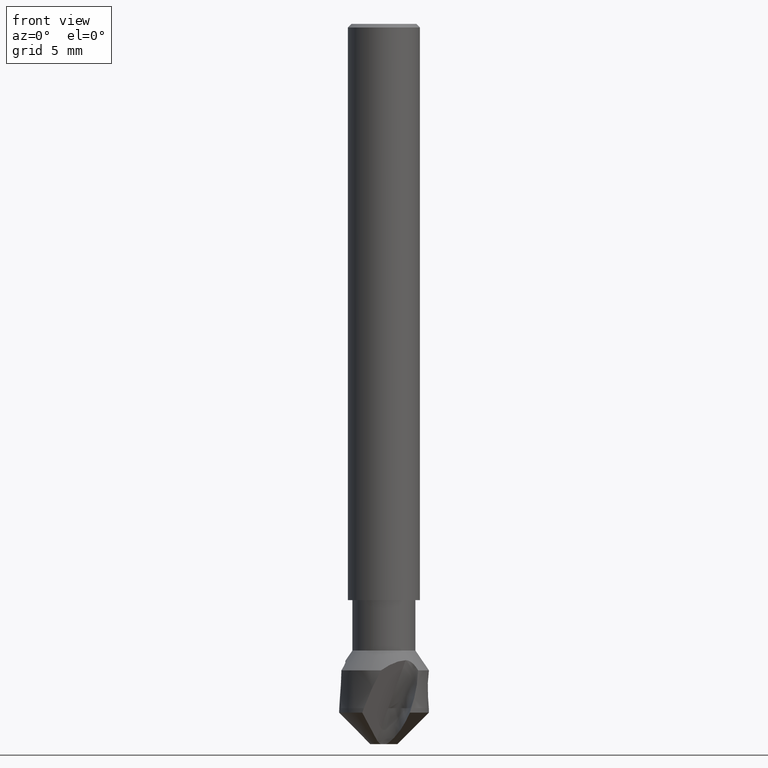
[diagram: clean part render]
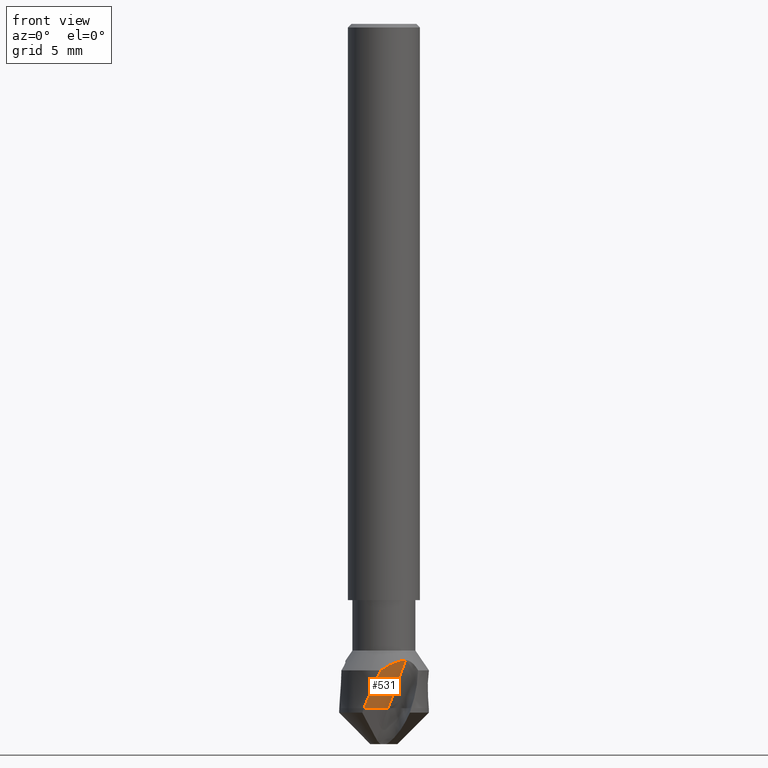
[diagram: same view with one face highlighted and labeled with its STEP entity id]
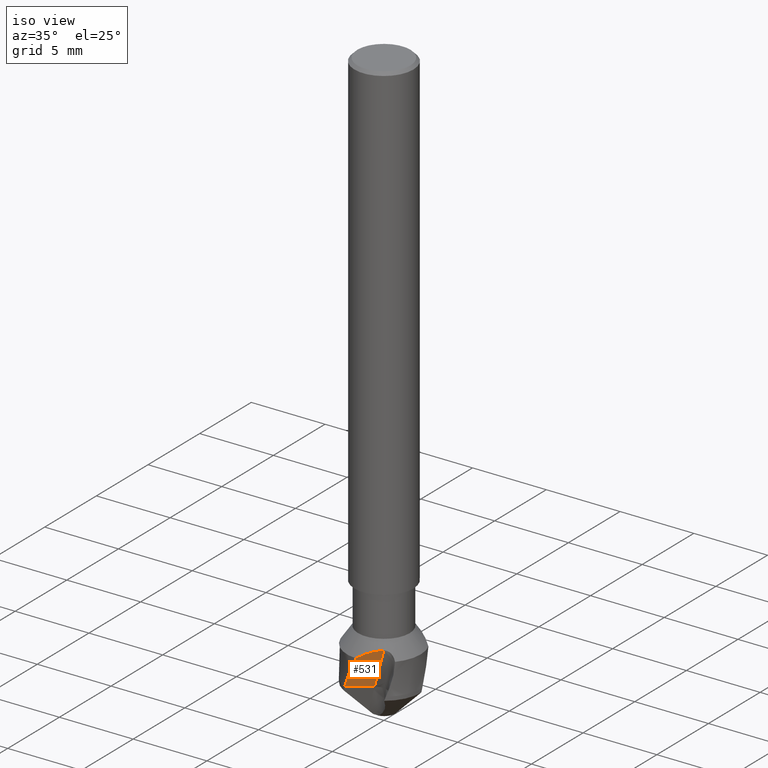
[diagram: same view with one face highlighted and labeled with its STEP entity id]
A machine part, front view. The second image highlights one B-rep face of the part: STEP entity #531.
A second angle (iso view) of the same face is appended — the face is thin or edge-on in the first view.
In plain terms, the highlighted planar face has unit normal (0.5585, -0.7544, -0.3448).
Its self-contained STEP definition (entity closure, byte-faithful):
#226 = EDGE_CURVE('', #227, #229, #231, .T.);
#227 = VERTEX_POINT('', #228);
#228 = CARTESIAN_POINT('', (1.20760205193936, -1.73999720891473, -35.3397226009154));
#229 = VERTEX_POINT('', #230);
#230 = CARTESIAN_POINT('', (-0.158107779370651, -2.49499537676976, -35.9));
#231 = B_SPLINE_CURVE_WITH_KNOTS('', 3, (#232, #233, #234, #235, #236, #237, #238, #239, #240, #241, #242, #243, #244, #245, #246, #247, #248, #249, #250, #251, #252, #253, #254, #255, #256, #257, #258, #259), .UNSPECIFIED., .F., .U., (4, 3, 3, 3, 3, 3, 3, 3, 3, 4), (0., 0.196740486609931, 0.393544693247827, 0.59041191928206, 0.787336911623722, 0.984311707737441, 1.27977244174439, 1.47683359146671, 1.51581393571768, 1.6823107857256), .UNSPECIFIED.);
#232 = CARTESIAN_POINT('', (1.20760205193936, -1.73999720891473, -35.3397226009154));
#233 = CARTESIAN_POINT('', (1.15450244394694, -1.77843594208436, -35.3416339088387));
#234 = CARTESIAN_POINT('', (1.10078804903441, -1.81599819537307, -35.3464583896103));
#235 = CARTESIAN_POINT('', (1.04681979878399, -1.85246775017193, -35.3540844772241));
#236 = CARTESIAN_POINT('', (0.992834069373713, -1.88894911667815, -35.3617130347642));
#237 = CARTESIAN_POINT('', (0.938484171276018, -1.9244125748852, -35.3721582514227));
#238 = CARTESIAN_POINT('', (0.884105119045262, -1.95871182789647, -35.3851975724793));
#239 = CARTESIAN_POINT('', (0.82970865389888, -1.99302206399726, -35.3982410689047));
#240 = CARTESIAN_POINT('', (0.775183308438032, -2.02623164631097, -35.4139011612502));
#241 = CARTESIAN_POINT('', (0.720808809527349, -2.05826665254427, -35.4318865098584));
#242 = CARTESIAN_POINT('', (0.666418355629724, -2.09031105873741, -35.4498771358669));
#243 = CARTESIAN_POINT('', (0.612093579295941, -2.12123177045816, -35.4702196494777));
#244 = CARTESIAN_POINT('', (0.558047523553407, -2.15101581780167, -35.4925973716619));
#245 = CARTESIAN_POINT('', (0.503987799167757, -2.18080739774878, -35.5149807533359));
#246 = CARTESIAN_POINT('', (0.450137343549027, -2.2095011352929, -35.5394269011755));
#247 = CARTESIAN_POINT('', (0.396645734377478, -2.23712750356453, -35.5656268885022));
#248 = CARTESIAN_POINT('', (0.316408717150592, -2.2785668511792, -35.6049266752731));
#249 = CARTESIAN_POINT('', (0.236841490417003, -2.31767779492013, -35.6482353995181));
#250 = CARTESIAN_POINT('', (0.158235387121901, -2.35466563533675, -35.694632079254));
#251 = CARTESIAN_POINT('', (0.105808085258637, -2.37933512782529, -35.7255769121868));
#252 = CARTESIAN_POINT('', (0.0537555239291735, -2.40308529251182, -35.7579259775108));
#253 = CARTESIAN_POINT('', (0.00211990617337289, -2.42598889427352, -35.7914517367246));
#254 = CARTESIAN_POINT('', (-0.0080940510605584, -2.43051941833936, -35.7980834124114));
#255 = CARTESIAN_POINT('', (-0.0182924699728632, -2.43501714215963, -35.8047616774161));
#256 = CARTESIAN_POINT('', (-0.0284751408104747, -2.43948263831192, -35.8114849394093));
#257 = CARTESIAN_POINT('', (-0.0719684103468818, -2.45855612412546, -35.8402020265762));
#258 = CARTESIAN_POINT('', (-0.115182688459137, -2.47704562340189, -35.8697448124174));
#259 = CARTESIAN_POINT('', (-0.158107779370724, -2.49499537676978, -35.9));
#531 = ADVANCED_FACE('', (#532), #576, .T.);
#532 = FACE_OUTER_BOUND('', #533, .T.);
#533 = EDGE_LOOP('', (#534, #544, #550, #551));
#534 = ORIENTED_EDGE('', *, *, #535, .F.);
#535 = EDGE_CURVE('', #536, #538, #540, .T.);
#536 = VERTEX_POINT('', #537);
#537 = CARTESIAN_POINT('', (0.239340263781458, -1.24081410238439, -38.));
#538 = VERTEX_POINT('', #539);
#539 = CARTESIAN_POINT('', (-1.11021511575498, -2.23996035606643, -38.));
#540 = LINE('', #541, #542);
#541 = CARTESIAN_POINT('', (0.239340263781479, -1.24081410238438, -38.));
#542 = VECTOR('', #543, 1.67916436321245);
#543 = DIRECTION('', (-1.34955537953645, -0.99914625368205, 0.));
#544 = ORIENTED_EDGE('', *, *, #545, .T.);
#545 = EDGE_CURVE('', #536, #227, #546, .T.);
#546 = LINE('', #547, #548);
#547 = CARTESIAN_POINT('', (0.239340263781458, -1.24081410238439, -38.));
#548 = VECTOR('', #549, 2.87468093957091);
#549 = DIRECTION('', (0.968261788157906, -0.499183106530342, 2.66027739908459));
#550 = ORIENTED_EDGE('', *, *, #226, .T.);
#551 = ORIENTED_EDGE('', *, *, #552, .F.);
#552 = EDGE_CURVE('', #538, #229, #553, .T.);
#553 = B_SPLINE_CURVE_WITH_KNOTS('', 3, (#554, #555, #556, #557, #558, #559, #560, #561, #562, #563, #564, #565, #566, #567, #568, #569, #570, #571, #572, #573, #574, #575), .UNSPECIFIED., .F., .U., (4, 3, 3, 3, 3, 3, 3, 4), (0.270055093325694, 0.443228902501678, 0.886410396550348, 1.32953249733256, 1.77257781914671, 2.06795702549635, 2.36329243469526, 2.59401512353475), .UNSPECIFIED.);
#554 = CARTESIAN_POINT('', (-1.11021511575498, -2.23996035606643, -38.));
#555 = CARTESIAN_POINT('', (-1.09048168719979, -2.24974104285774, -37.9466421537014));
#556 = CARTESIAN_POINT('', (-1.070503293399, -2.25931838093744, -37.8933324100233));
#557 = CARTESIAN_POINT('', (-1.05027564706398, -2.26868267176905, -37.8400850422081));
#558 = CARTESIAN_POINT('', (-0.998509629058726, -2.2926474989055, -37.7038158908002));
#559 = CARTESIAN_POINT('', (-0.945096728274762, -2.31522815021579, -37.5679074901998));
#560 = CARTESIAN_POINT('', (-0.889896115676399, -2.33625446030693, -37.4325040122608));
#561 = CARTESIAN_POINT('', (-0.834702900825316, -2.35727795254297, -37.2971186805102));
#562 = CARTESIAN_POINT('', (-0.77770828177923, -2.37675451516065, -37.1621998806461));
#563 = CARTESIAN_POINT('', (-0.718727200094714, -2.39445843811163, -37.0279416616794));
#564 = CARTESIAN_POINT('', (-0.65975633795596, -2.41215929353579, -36.8937067053925));
#565 = CARTESIAN_POINT('', (-0.598780304345773, -2.42809639226234, -36.7600825955327));
#566 = CARTESIAN_POINT('', (-0.535553226952343, -2.44196288692128, -36.6273423854845));
#567 = CARTESIAN_POINT('', (-0.493399607399821, -2.45120770677501, -36.5388442207049));
#568 = CARTESIAN_POINT('', (-0.450233630821674, -2.45953303246481, -36.4507179437949));
#569 = CARTESIAN_POINT('', (-0.405961991090376, -2.46681877360092, -36.3630751494735));
#570 = CARTESIAN_POINT('', (-0.361696915706321, -2.47410343444872, -36.2754453503278));
#571 = CARTESIAN_POINT('', (-0.316315105392688, -2.48035141552591, -36.1882747468131));
#572 = CARTESIAN_POINT('', (-0.26970174900039, -2.48540961746472, -36.1017123157027));
#573 = CARTESIAN_POINT('', (-0.233286342693922, -2.48936119900782, -36.0340877903793));
#574 = CARTESIAN_POINT('', (-0.196110429460743, -2.49258715001636, -35.9668189514165));
#575 = CARTESIAN_POINT('', (-0.158107779370652, -2.49499537676976, -35.9));
#576 = PLANE('', #577);
#577 = AXIS2_PLACEMENT_3D('', #578, #579, #580);
#578 = CARTESIAN_POINT('', (-3.56612770100685, -3.13136270400322, -40.0276061944207));
#579 = DIRECTION('', (0.558526494271784, -0.754406506735485, -0.344846310392954));
#580 = DIRECTION('', (0.758022221559485, 0.633022221559495, -0.157115176332223));